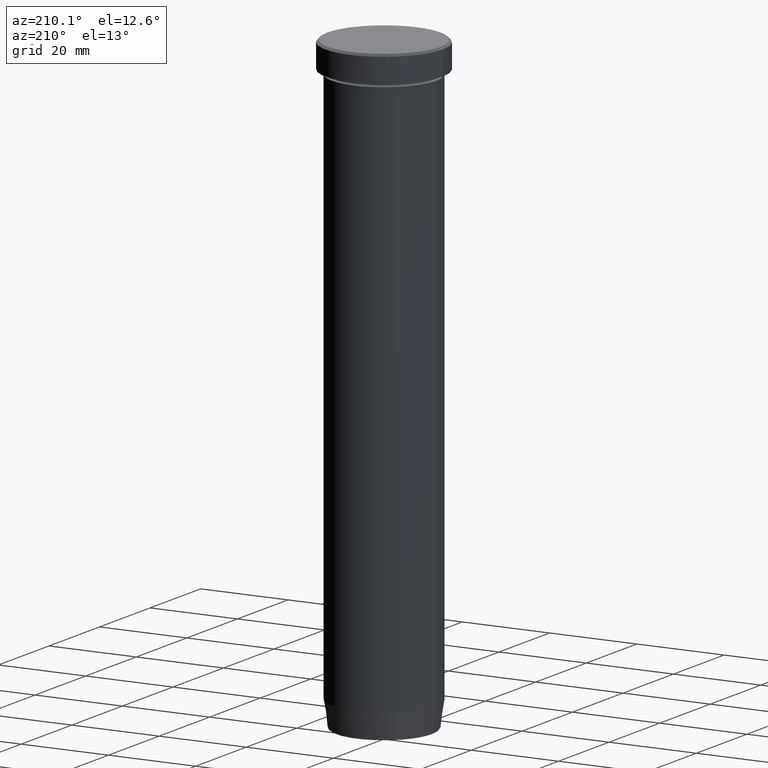
[diagram: clean part render]
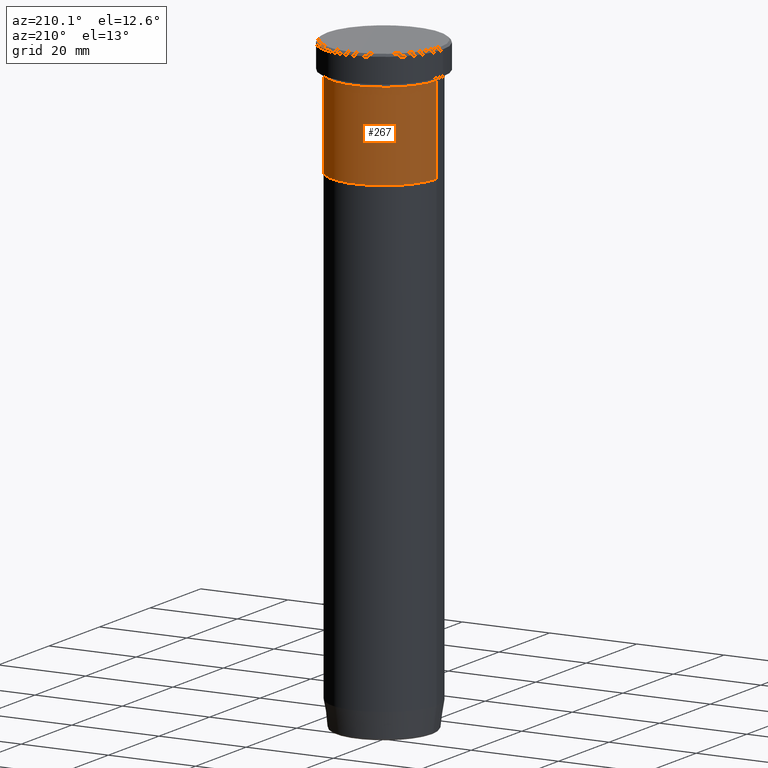
[diagram: same view with one face highlighted and labeled with its STEP entity id]
A machine part, auxiliary view. The second image highlights one B-rep face of the part: STEP entity #267.
In plain terms, the highlighted cylindrical surface (partial cylindrical patch) has radius 12 mm, axis along (-0, -0, 1).
Its self-contained STEP definition (entity closure, byte-faithful):
#4 = VECTOR ( 'NONE', #552, 1000.000000000000000 ) ;
#15 = CIRCLE ( 'NONE', #417, 12.00000000000000000 ) ;
#49 = ORIENTED_EDGE ( 'NONE', *, *, #411, .T. ) ;
#53 = EDGE_LOOP ( 'NONE', ( #49, #311, #271, #228 ) ) ;
#55 = LINE ( 'NONE', #89, #4 ) ;
#59 = VERTEX_POINT ( 'NONE', #577 ) ;
#89 = CARTESIAN_POINT ( 'NONE',  ( -12.00000000000000000, 1.469576158976823947E-15, 0.000000000000000000 ) ) ;
#93 = DIRECTION ( 'NONE',  ( -0.000000000000000000, -0.000000000000000000, 1.000000000000000000 ) ) ;
#123 = AXIS2_PLACEMENT_3D ( 'NONE', #579, #485, #594 ) ;
#146 = CARTESIAN_POINT ( 'NONE',  ( 12.00000000000000000, 0.000000000000000000, -7.000000000000000000 ) ) ;
#150 = DIRECTION ( 'NONE',  ( -0.000000000000000000, -0.000000000000000000, 1.000000000000000000 ) ) ;
#178 = CYLINDRICAL_SURFACE ( 'NONE', #357, 12.00000000000000000 ) ;
#189 = EDGE_CURVE ( 'NONE', #458, #598, #251, .T. ) ;
#193 = CARTESIAN_POINT ( 'NONE',  ( 0.000000000000000000, 0.000000000000000000, -27.00000000000000000 ) ) ;
#228 = ORIENTED_EDGE ( 'NONE', *, *, #410, .F. ) ;
#236 = CARTESIAN_POINT ( 'NONE',  ( 12.00000000000000000, 0.000000000000000000, 0.000000000000000000 ) ) ;
#251 = CIRCLE ( 'NONE', #123, 12.00000000000000000 ) ;
#264 = DIRECTION ( 'NONE',  ( 1.000000000000000000, 0.000000000000000000, 0.000000000000000000 ) ) ;
#267 = ADVANCED_FACE ( 'NONE', ( #497 ), #178, .T. ) ;
#271 = ORIENTED_EDGE ( 'NONE', *, *, #189, .F. ) ;
#283 = DIRECTION ( 'NONE',  ( 1.000000000000000000, 0.000000000000000000, 0.000000000000000000 ) ) ;
#301 = CARTESIAN_POINT ( 'NONE',  ( -12.00000000000000000, 1.469576158976823947E-15, -7.000000000000000000 ) ) ;
#311 = ORIENTED_EDGE ( 'NONE', *, *, #375, .T. ) ;
#318 = DIRECTION ( 'NONE',  ( -0.000000000000000000, -0.000000000000000000, 1.000000000000000000 ) ) ;
#339 = VECTOR ( 'NONE', #93, 1000.000000000000000 ) ;
#357 = AXIS2_PLACEMENT_3D ( 'NONE', #547, #318, #264 ) ;
#375 = EDGE_CURVE ( 'NONE', #591, #598, #55, .T. ) ;
#410 = EDGE_CURVE ( 'NONE', #59, #458, #503, .T. ) ;
#411 = EDGE_CURVE ( 'NONE', #59, #591, #15, .T. ) ;
#417 = AXIS2_PLACEMENT_3D ( 'NONE', #193, #150, #283 ) ;
#436 = CARTESIAN_POINT ( 'NONE',  ( -12.00000000000000000, 1.469576158976823947E-15, -27.00000000000000000 ) ) ;
#458 = VERTEX_POINT ( 'NONE', #146 ) ;
#485 = DIRECTION ( 'NONE',  ( -0.000000000000000000, -0.000000000000000000, 1.000000000000000000 ) ) ;
#497 = FACE_OUTER_BOUND ( 'NONE', #53, .T. ) ;
#503 = LINE ( 'NONE', #236, #339 ) ;
#547 = CARTESIAN_POINT ( 'NONE',  ( 0.000000000000000000, 0.000000000000000000, 0.000000000000000000 ) ) ;
#552 = DIRECTION ( 'NONE',  ( -0.000000000000000000, -0.000000000000000000, 1.000000000000000000 ) ) ;
#577 = CARTESIAN_POINT ( 'NONE',  ( 12.00000000000000000, 0.000000000000000000, -27.00000000000000000 ) ) ;
#579 = CARTESIAN_POINT ( 'NONE',  ( 0.000000000000000000, 0.000000000000000000, -7.000000000000000000 ) ) ;
#591 = VERTEX_POINT ( 'NONE', #436 ) ;
#594 = DIRECTION ( 'NONE',  ( 1.000000000000000000, 0.000000000000000000, 0.000000000000000000 ) ) ;
#598 = VERTEX_POINT ( 'NONE', #301 ) ;